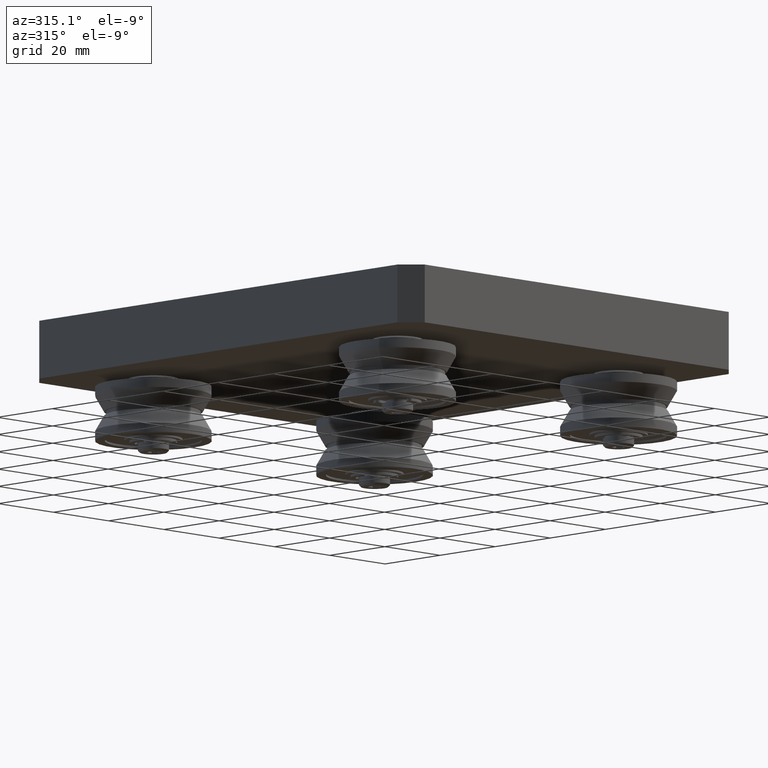
[diagram: clean part render]
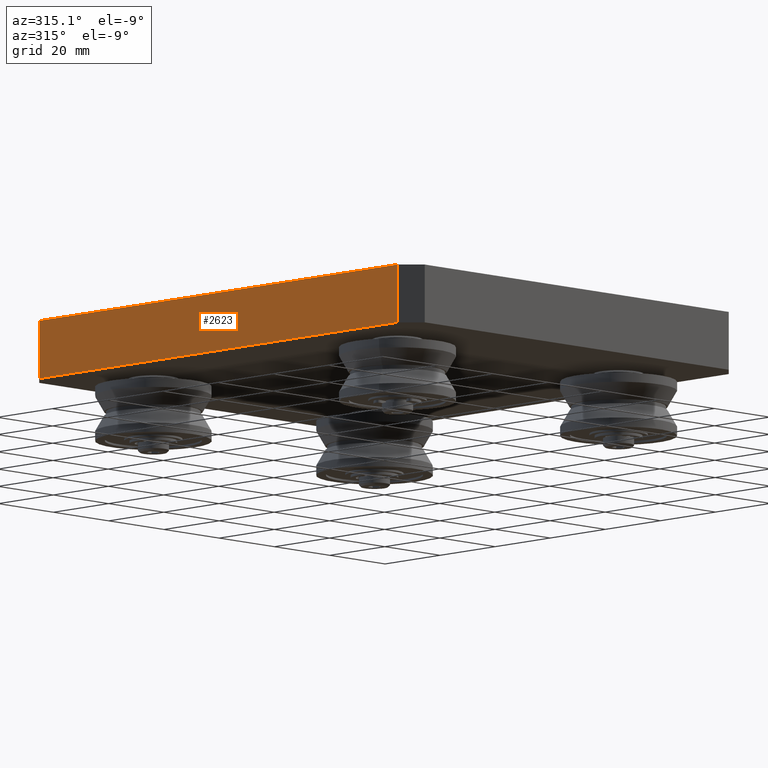
[diagram: same view with one face highlighted and labeled with its STEP entity id]
A machine part, auxiliary view. The second image highlights one B-rep face of the part: STEP entity #2623.
In plain terms, the highlighted planar face has unit normal (-1, 0, 0).
Its self-contained STEP definition (entity closure, byte-faithful):
#366=FACE_OUTER_BOUND('',#537,.T.);
#537=EDGE_LOOP('',(#1786,#1787,#1788,#1789));
#750=LINE('',#4228,#965);
#751=LINE('',#4231,#966);
#752=LINE('',#4233,#967);
#753=LINE('',#4234,#968);
#965=VECTOR('',#3334,10.);
#966=VECTOR('',#3337,10.);
#967=VECTOR('',#3338,10.);
#968=VECTOR('',#3339,10.);
#1177=VERTEX_POINT('',#4221);
#1180=VERTEX_POINT('',#4226);
#1181=VERTEX_POINT('',#4230);
#1182=VERTEX_POINT('',#4232);
#1415=EDGE_CURVE('',#1180,#1177,#750,.T.);
#1416=EDGE_CURVE('',#1181,#1180,#751,.T.);
#1417=EDGE_CURVE('',#1182,#1181,#752,.T.);
#1418=EDGE_CURVE('',#1182,#1177,#753,.T.);
#1786=ORIENTED_EDGE('',*,*,#1415,.F.);
#1787=ORIENTED_EDGE('',*,*,#1416,.F.);
#1788=ORIENTED_EDGE('',*,*,#1417,.F.);
#1789=ORIENTED_EDGE('',*,*,#1418,.T.);
#2523=PLANE('',#2989);
#2623=ADVANCED_FACE('',(#366),#2523,.T.);
#2989=AXIS2_PLACEMENT_3D('',#4229,#3335,#3336);
#3334=DIRECTION('',(0.,0.,1.));
#3335=DIRECTION('center_axis',(-1.,0.,0.));
#3336=DIRECTION('ref_axis',(0.,0.,1.));
#3337=DIRECTION('',(0.,1.,0.));
#3338=DIRECTION('',(0.,0.,-1.));
#3339=DIRECTION('',(0.,1.,0.));
#4221=CARTESIAN_POINT('',(-60.,65.,15.));
#4226=CARTESIAN_POINT('',(-60.,65.,0.));
#4228=CARTESIAN_POINT('',(-60.,65.,0.));
#4229=CARTESIAN_POINT('Origin',(-60.,-70.,0.));
#4230=CARTESIAN_POINT('',(-60.,-65.,0.));
#4231=CARTESIAN_POINT('',(-60.,-70.,0.));
#4232=CARTESIAN_POINT('',(-60.,-65.,15.));
#4233=CARTESIAN_POINT('',(-60.,-65.,0.));
#4234=CARTESIAN_POINT('',(-60.,-70.,15.));